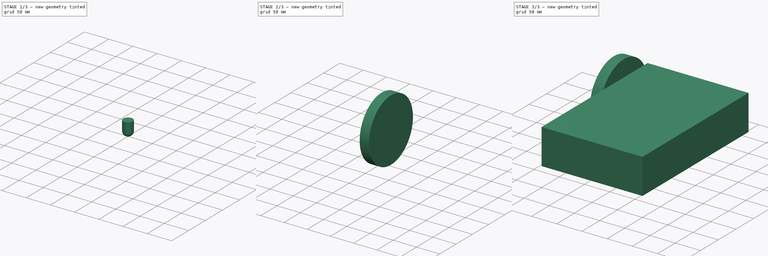
[diagram: build sequence overview — one tinted view per stage of 3, left to right]
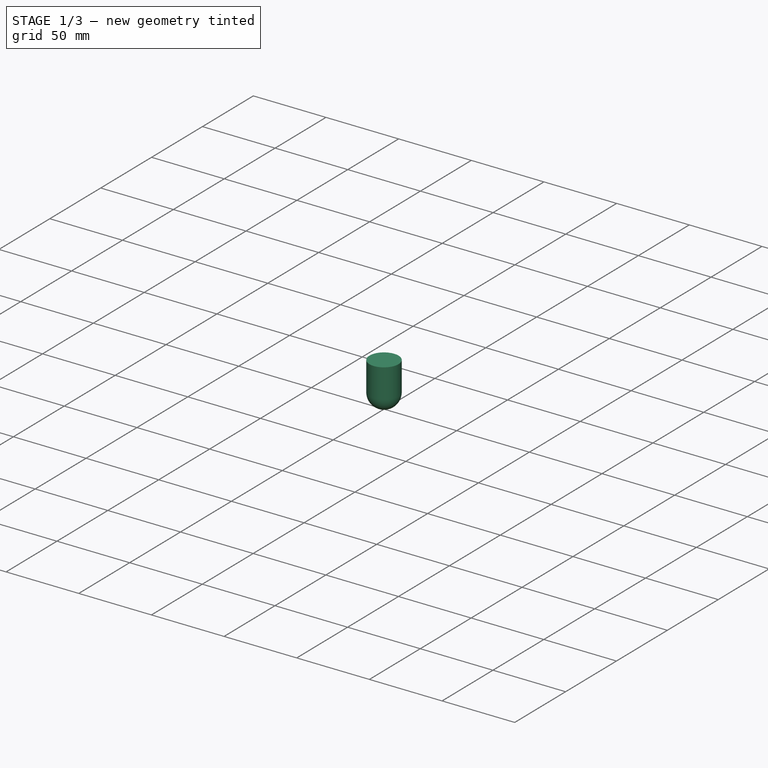
[diagram: stage 1 of 3 — iso view after this stage's code; geometry added in this stage tinted green]
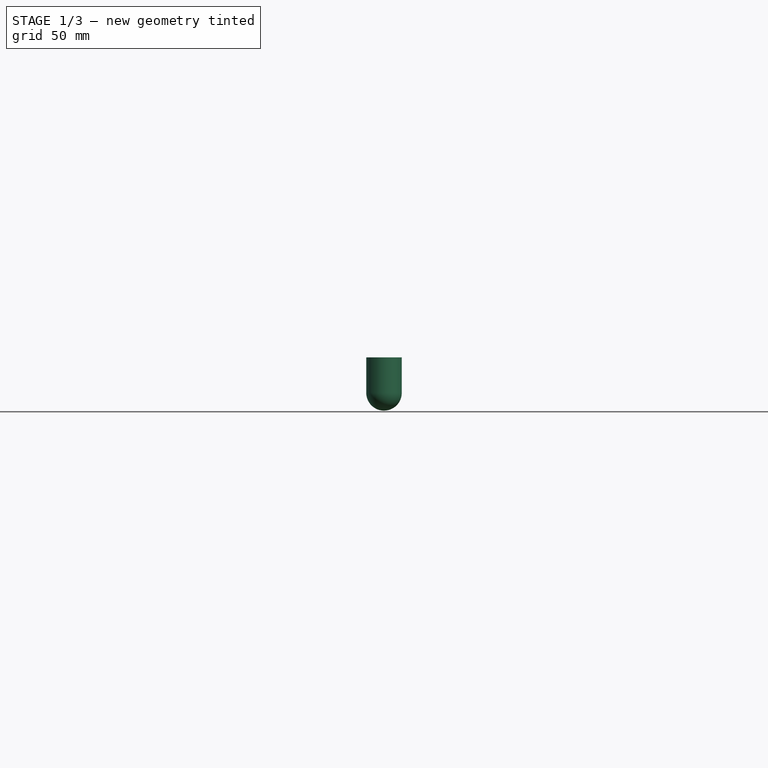
[diagram: stage 1 of 3 — front view after this stage's code; geometry added in this stage tinted green]
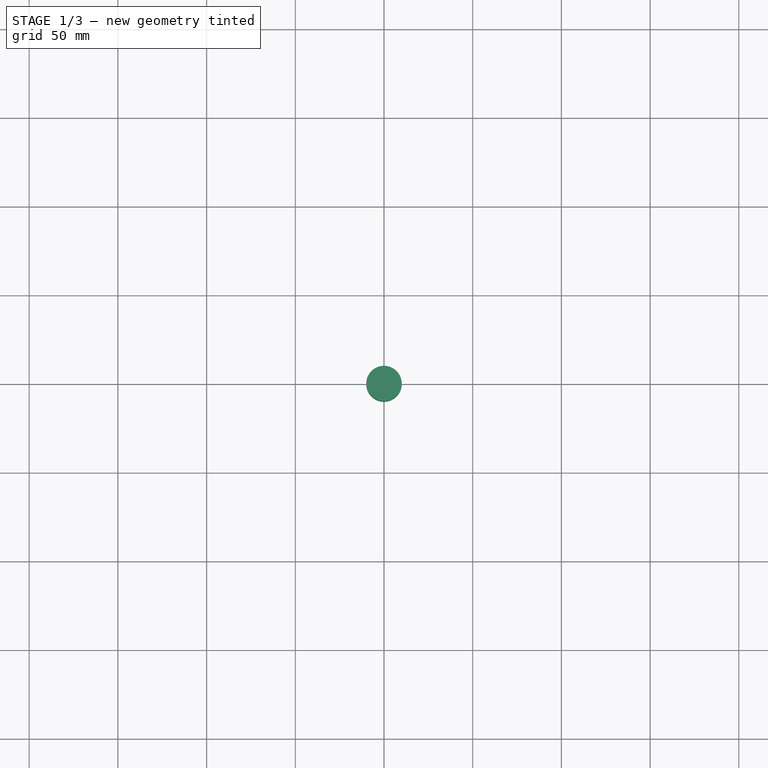
[diagram: stage 1 of 3 — top view after this stage's code; geometry added in this stage tinted green]
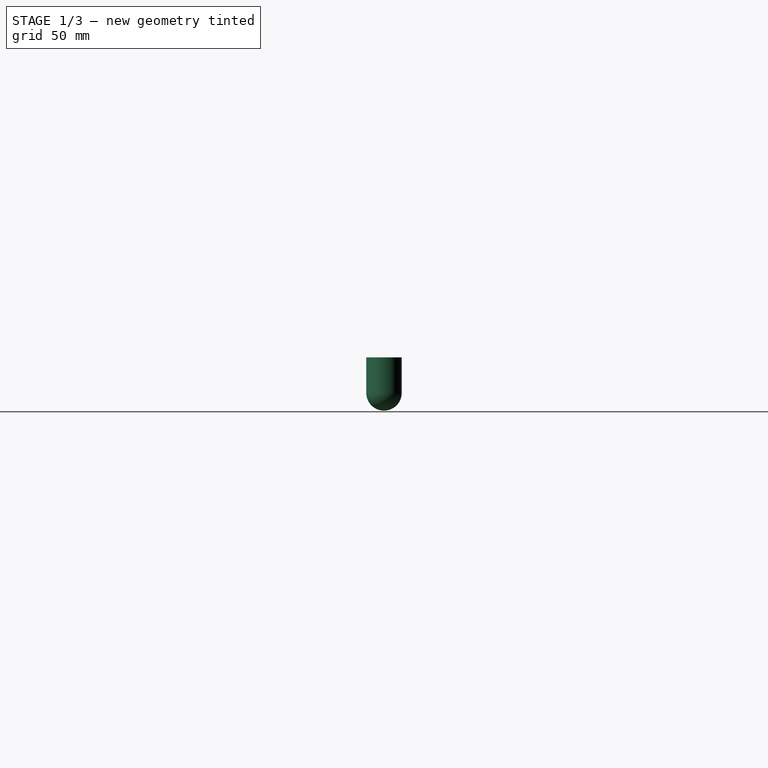
[diagram: stage 1 of 3 — right view after this stage's code; geometry added in this stage tinted green]
FCSTD DOCUMENT  (FreeCAD 0.20R29177 +426 (Git))
Label: diff_bot
License: All rights reserved
LicenseURL: http://en.wikipedia.org/wiki/All_rights_reserved
objects: Sketcher::SketchObject×3, PartDesign::Pad×3, PartDesign::Body×3, Spreadsheet::Sheet×1, Part::Mirroring×1, PartDesign::AdditiveSphere×1
note: 15 computed .brp shape members not serialized (recipe doc carries the construction recipe); baked Part::Feature solids carry a one-line shape summary decoded from their .brp

FEATURE [Sketcher::SketchObject] Sketch003
  FullyConstrained = false
  MapMode = 5
  Placement = pos=(0,0,0) rot=(1,0,0;3.14159rad)
  sketch-geometry (2):
    g0: Circle CenterX=0 CenterY=0 CenterZ=0 NormalX=0 NormalY=0 NormalZ=1 AngleXU=0 Radius=10
    g1: LineSegment StartX=0 StartY=0 StartZ=0 EndX=-8.67266 EndY=4.97844 EndZ=0
  constraints (4):
    c: Coincident(g0,g-1)
    c: Coincident(g1,g0)
    c: PointOnObject(g1,g0)
    c: Distance(g1) = 10
FEATURE [PartDesign::Pad] Pad002
  Direction = (0,0,-1)
  Length = 20
  Length2 = 10
  Placement = pos=(0,0,0) rot=(1,0,0;3.14159rad)
  Profile = -> Sketch003
  ReferenceAxis = -> Sketch003 [N_Axis]
  Type = 0
  UseCustomVector = true
FEATURE [PartDesign::AdditiveSphere] Sphere
  Angle1 = -90
  Angle2 = 90
  Angle3 = 360
  AttacherType = Attacher::AttachEngine3D
  BaseFeature = -> Pad002
  MapMode = 5
  Placement = pos=(0,2.4e-15,-20) rot=(1,0,0;3.14159rad)
  Radius = 10
  Support = -> [Pad002]
FEATURE [PartDesign::Body] Body002  label="Caster"
  Group = -> [Sketch003,Pad002,Sphere]
  Origin = -> Origin002
  Placement = pos=(-3,-131,0) rot=(0,0,1;0rad)
  Tip = -> Sphere
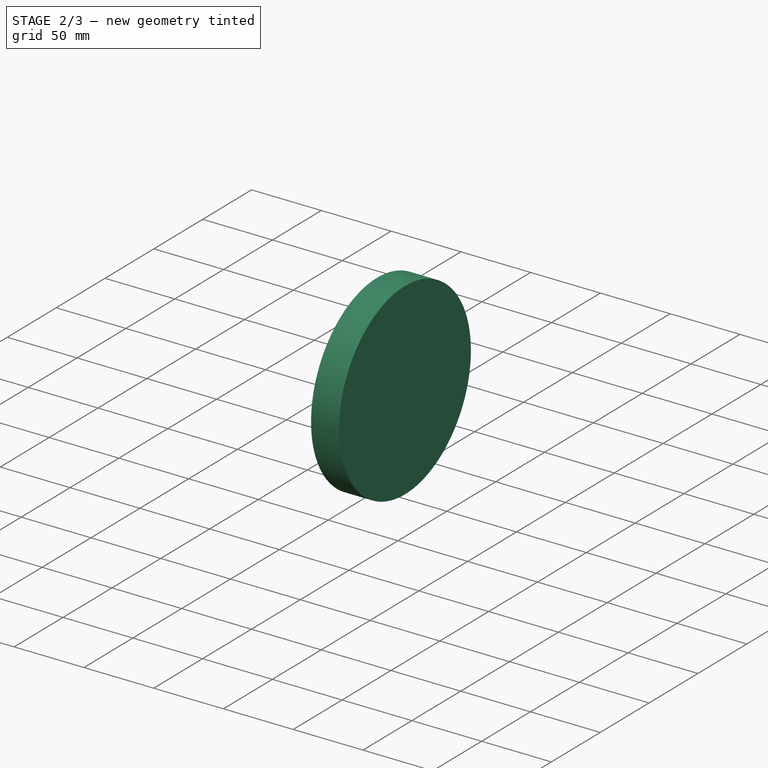
[diagram: stage 2 of 3 — iso view after this stage's code; geometry added in this stage tinted green]
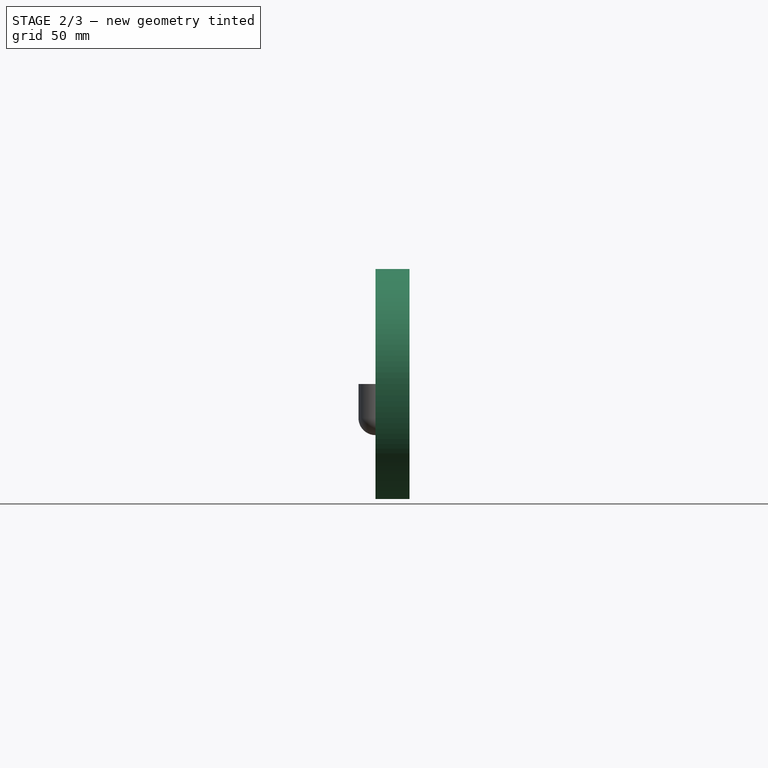
[diagram: stage 2 of 3 — front view after this stage's code; geometry added in this stage tinted green]
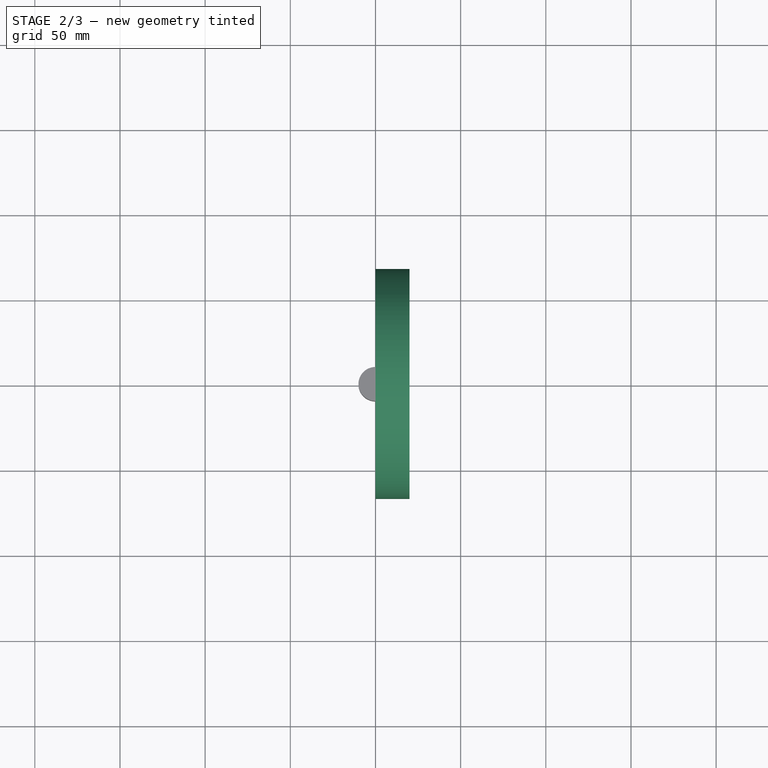
[diagram: stage 2 of 3 — top view after this stage's code; geometry added in this stage tinted green]
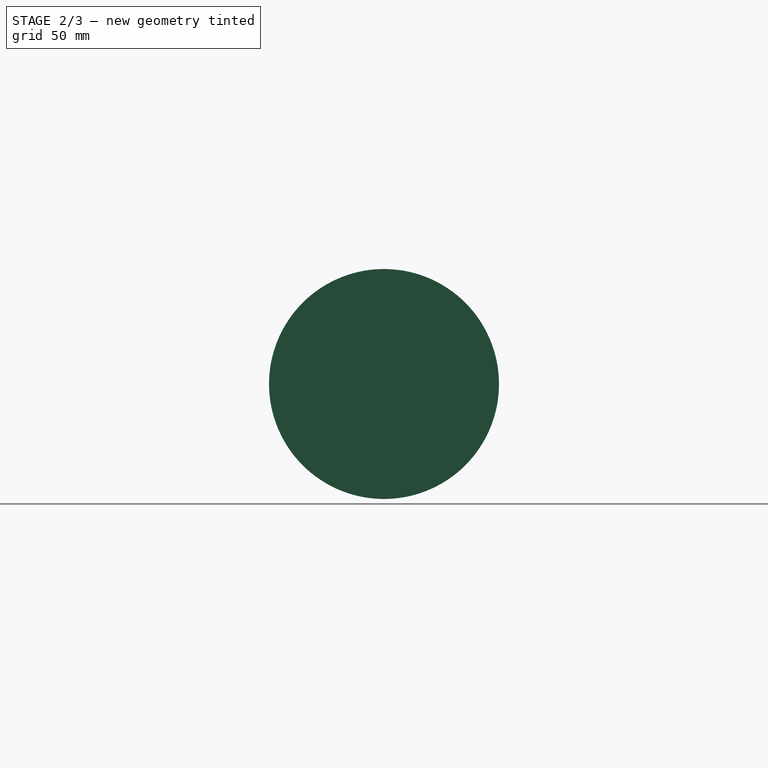
[diagram: stage 2 of 3 — right view after this stage's code; geometry added in this stage tinted green]
FEATURE [PartDesign::Body] Body  label="BodyBase"
  Group = -> [Sketch,Pad]
  Origin = -> Origin
  Tip = -> Pad
FEATURE [Sketcher::SketchObject] Sketch001
  FullyConstrained = false
  MapMode = 5
  Placement = pos=(0,0,0) rot=(0.57735,0.57735,0.57735;2.0944rad)
  Support = -> [YZ_Plane001]
  expr: Constraints[3] = Spreadsheet.robot_wheel_diameter / 2
  sketch-geometry (2):
    g0: Circle CenterX=0 CenterY=0 CenterZ=0 NormalX=0 NormalY=0 NormalZ=1 AngleXU=0 Radius=67.5
    g1: LineSegment StartX=0 StartY=0 StartZ=0 EndX=-8.80988 EndY=66.9226 EndZ=0
  constraints (4):
    c: Coincident(g0,g-1)
    c: Coincident(g1,g0)
    c: PointOnObject(g1,g0)
    c: Distance(g1) = 67.5
FEATURE [PartDesign::Pad] Pad001
  Direction = (1,-2e-16,3e-16)
  Length = 20
  Length2 = 10
  Placement = pos=(0,0,0) rot=(0.57735,0.57735,0.57735;2.0944rad)
  Profile = -> Sketch001
  ReferenceAxis = -> Sketch001 [N_Axis]
  Type = 0
  expr: Length = Spreadsheet.robot_wheel_thickness
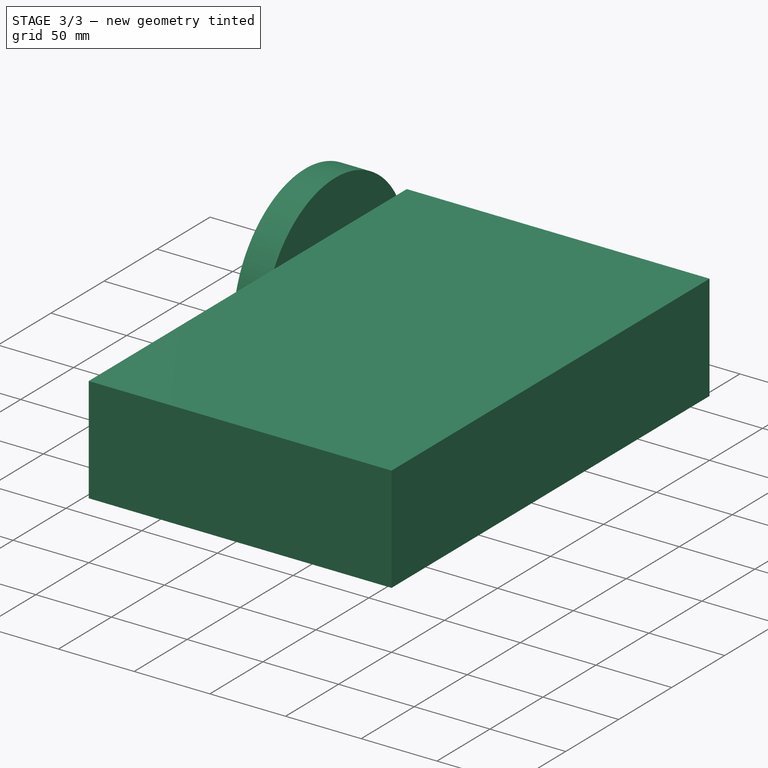
[diagram: stage 3 of 3 — iso view after this stage's code; geometry added in this stage tinted green]
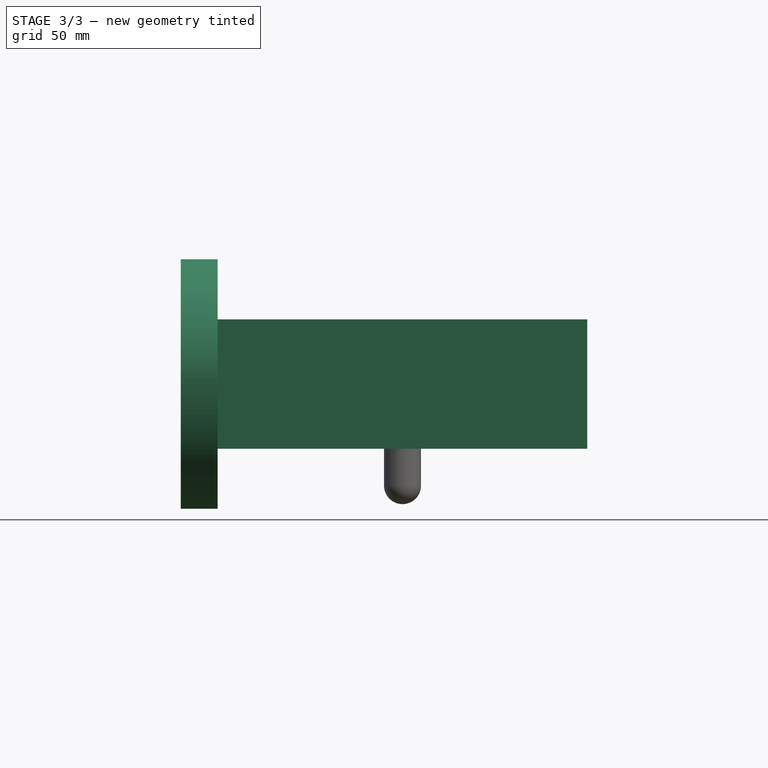
[diagram: stage 3 of 3 — front view after this stage's code; geometry added in this stage tinted green]
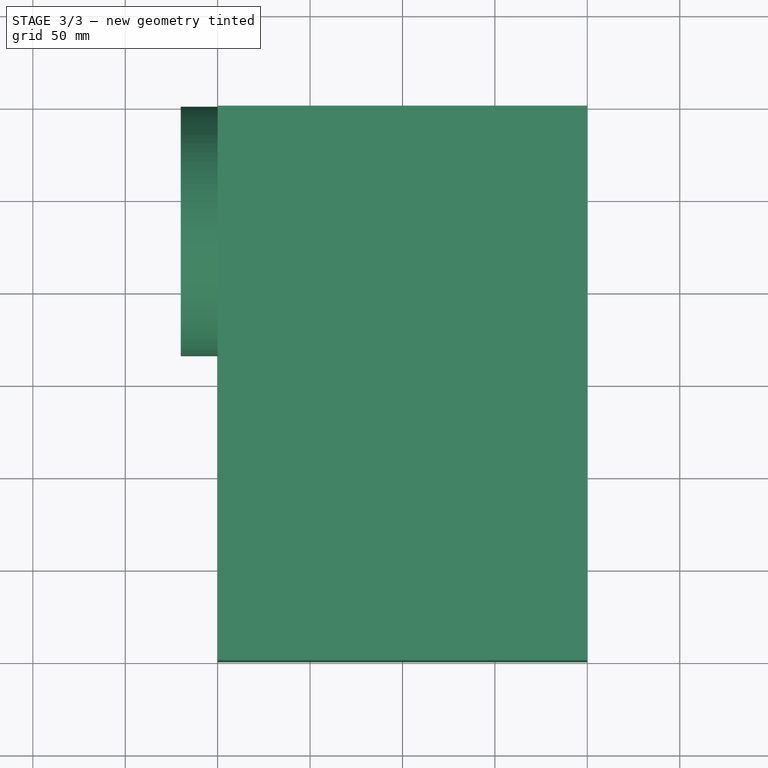
[diagram: stage 3 of 3 — top view after this stage's code; geometry added in this stage tinted green]
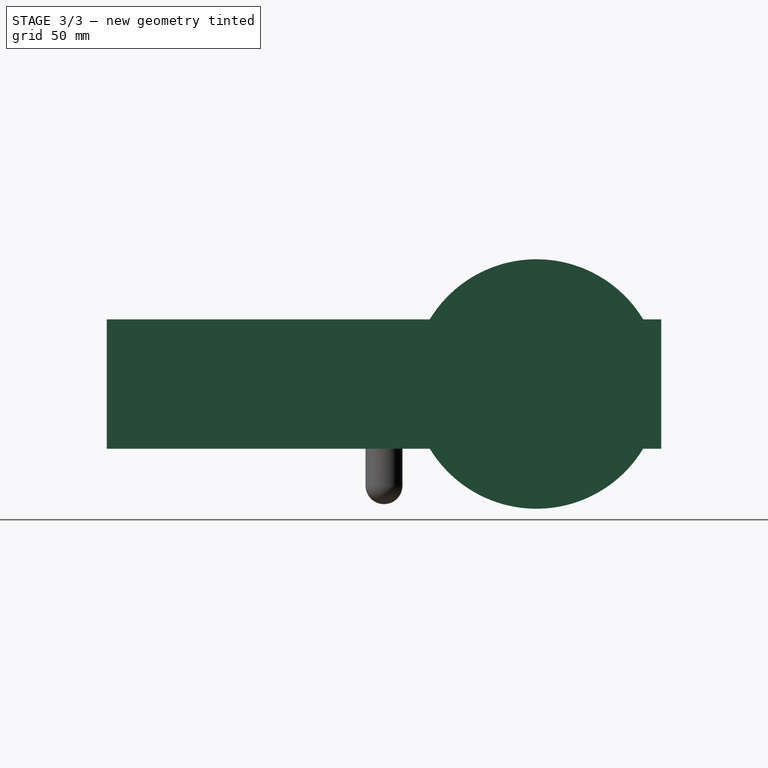
[diagram: stage 3 of 3 — right view after this stage's code; geometry added in this stage tinted green]
FEATURE [Sketcher::SketchObject] Sketch
  FullyConstrained = true
  expr: Constraints[10] = Spreadsheet.robot_bottom_width
  expr: Constraints[11] = Spreadsheet.robot_bottom_length
  sketch-geometry (5):
    g0: LineSegment StartX=100 StartY=-150 StartZ=0 EndX=100 EndY=150 EndZ=0
    g1: LineSegment StartX=100 StartY=150 StartZ=0 EndX=-100 EndY=150 EndZ=0
    g2: LineSegment StartX=-100 StartY=150 StartZ=0 EndX=-100 EndY=-150 EndZ=0
    g3: LineSegment StartX=-100 StartY=-150 StartZ=0 EndX=100 EndY=-150 EndZ=0
    g4: GeomPoint X=0 Y=0 Z=0
  constraints (12):
    c: Coincident(g0,g1)
    c: Coincident(g1,g2)
    c: Coincident(g2,g3)
    c: Coincident(g3,g0)
    c: Horizontal(g1)
    c: Horizontal(g3)
    c: Vertical(g0)
    c: Vertical(g2)
    c: Symmetric(g1,g0,g4)
    c: Coincident(g4,g-1)
    c: Distance(g1) = 200
    c: Distance(g0) = 300
FEATURE [Spreadsheet::Sheet] Spreadsheet  label="specs_spreadsheet"
  cells = A1=robot_bottom_width; B1(robot_bottom_width)==200mm; A2=robot_bottom_length; B2(robot_bottom_length)==300mm; A3=robot_bottom_height; B3(robot_bottom_height)==70mm; A4=robot_wheel_diameter; B4(robot_wheel_diameter)==135mm; A5=robot_wheel_thickness; B5(robot_wheel_thickness)==20mm; A7=robot_wheel_pos_x; B7(robot_wheel_pos_x)==robot_bottom_width / 2; A8=robot_wheel_pos_y; B8(robot_wheel_pos_y)==robot_bottom_length / 2 - robot_wheel_diameter / 2; A9=robot_wheel_post_z; B9(robot_wheel_post_z)==robot_bottom_height / 2; A11=caster_dist_from_center; B11(caster_dist_from_center)==robot_bottom_length / 2 - 40mm
FEATURE [PartDesign::Pad] Pad
  Direction = (0,0,1)
  Length = 70
  Length2 = 10
  Profile = -> Sketch
  ReferenceAxis = -> Sketch [N_Axis]
  Type = 0
  expr: Length = Spreadsheet.robot_bottom_height
FEATURE [PartDesign::Body] Body001  label="LeftWheel"
  Group = -> [Sketch001,Pad001]
  Origin = -> Origin001
  Placement = pos=(100,82.5,35) rot=(0,0,1;0rad)
  Tip = -> Pad001
  expr: .Placement.Base.x = <<specs_spreadsheet>>.robot_wheel_pos_x
  expr: .Placement.Base.y = <<specs_spreadsheet>>.robot_wheel_pos_y
  expr: .Placement.Base.z = <<specs_spreadsheet>>.robot_wheel_post_z
FEATURE [Part::Mirroring] Part__Mirroring  label="RightWheel"
  Base = (7.62939e-06,85,65)
  Normal = (1,0,-1.19209e-07)
  Source = -> Body001
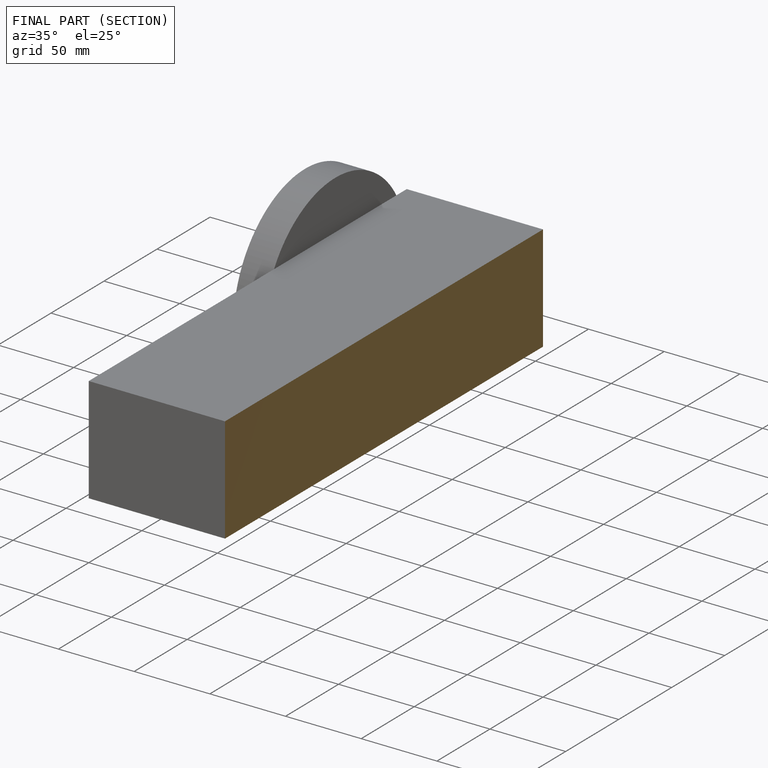
[diagram: finished part — half-section view (interior)]
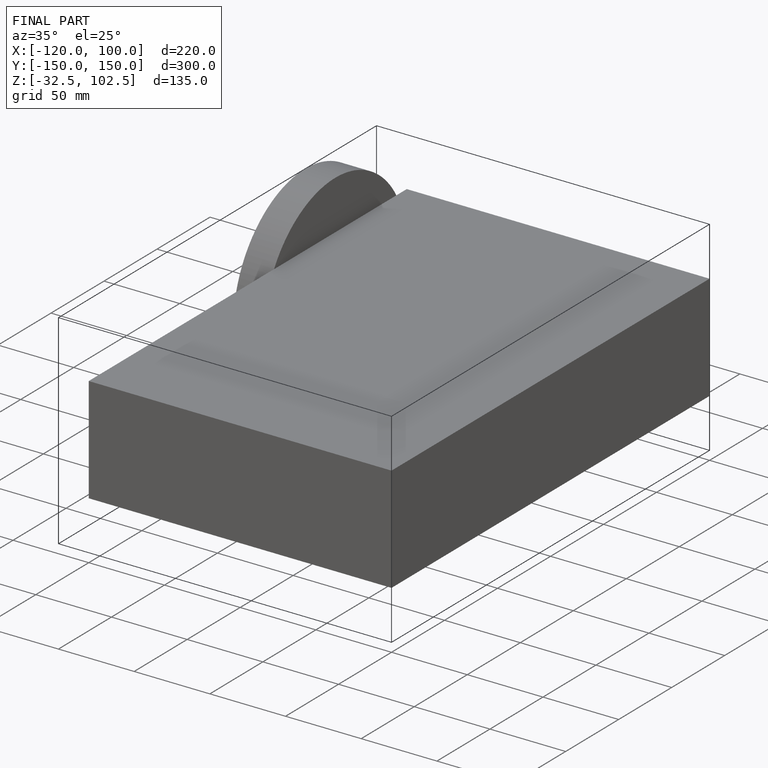
[diagram: finished part — iso view with bounding-box wireframe]
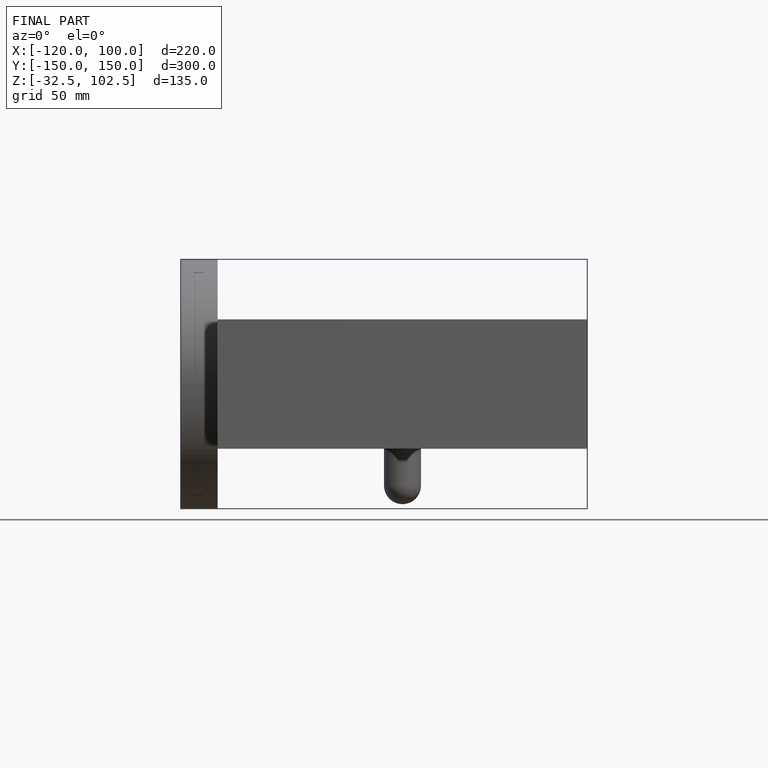
[diagram: finished part — front view with bounding-box wireframe]
